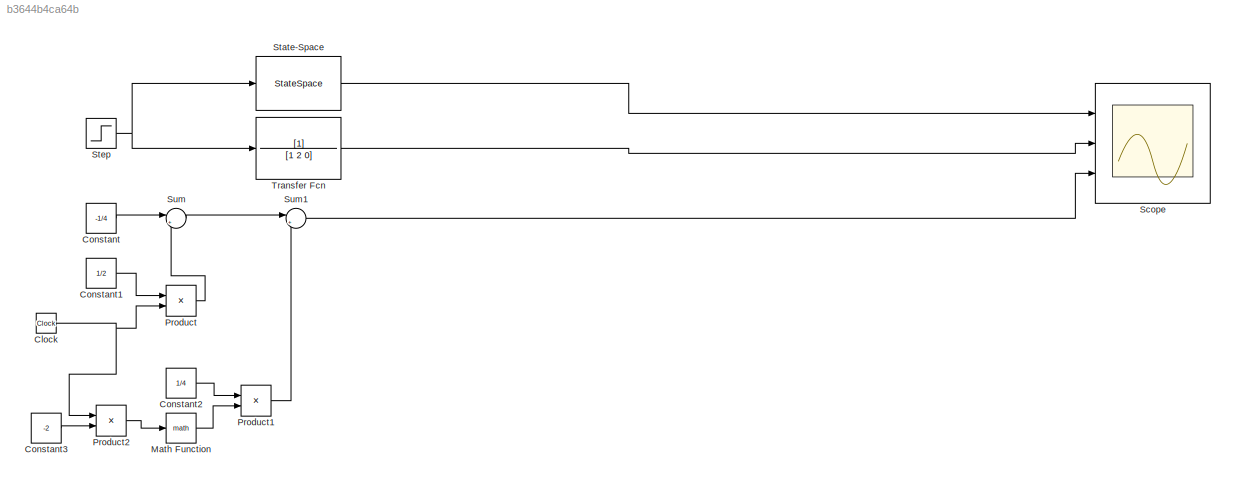
MODEL slx_b3644b4ca64b
KIND model
CONFIG AbsTol = auto
CONFIG EnableMultiTasking = off
CONFIG FixedStep = auto
CONFIG MaxStep = auto
CONFIG MinStep = auto
CONFIG RelTol = 1e-3
CONFIG SampleTimeConstraint = Unconstrained
CONFIG Solver = VariableStepAuto
CONFIG SolverName = VariableStepAuto
CONFIG StartTime = 0.0
CONFIG StopTime = 10.0
BLOCK [Clock] Clock
BLOCK [Constant] Constant
  Value = -1/4
BLOCK [Constant] Constant1
  Value = 1/2
BLOCK [Constant] Constant2
  Value = 1/4
BLOCK [Constant] Constant3
  Value = -2
BLOCK [Math] Math Function
  Ports = [1, 1]
BLOCK [Product] Product
  InputSameDT = off
  OutDataTypeStr = Inherit: Inherit via internal rule
  Ports = [2, 1]
  RndMeth = Floor
  SaturateOnIntegerOverflow = off
BLOCK [Product] Product1
  InputSameDT = off
  OutDataTypeStr = Inherit: Inherit via internal rule
  Ports = [2, 1]
  RndMeth = Floor
  SaturateOnIntegerOverflow = off
BLOCK [Product] Product2
  InputSameDT = off
  OutDataTypeStr = Inherit: Inherit via internal rule
  Ports = [2, 1]
  RndMeth = Floor
  SaturateOnIntegerOverflow = off
BLOCK [Scope] Scope
  Floating = off
  NumInputPorts = 3
  Ports = [3]
  ScopeSpecificationString = Simulink.scopes.TimeScopeBlockCfg('CurrentConfiguration', extmgr.ConfigurationSet(extmgr.Configuration('Core','General UI',true),extmgr.Configuration('Core','Source UI',true),extmgr.Configuration('Sources','WiredSimulink',true),extmgr.Configuration('Visuals','Time Domain',true,'SerializedDisplays',{struct('MinYLimReal','-0.59375','MaxYLimReal','5.34375','YLabelReal','','MinYLimMag','0.00000','MaxY...<+1386ch>
BLOCK [StateSpace] State-Space
  A = [-4,-4,0;1,0,0;0,1,0]
  B = [1;0;0]
  C = [0,1,2]
  D = 0
  InitialCondition = 0
  Ports = [1, 1]
BLOCK [Step] Step
  SampleTime = 0
  Time = 0
BLOCK [Sum] Sum
  IconShape = round
  InputSameDT = off
  Inputs = |++
  OutDataTypeStr = Inherit: Inherit via internal rule
  Ports = [2, 1]
  SaturateOnIntegerOverflow = off
BLOCK [Sum] Sum1
  IconShape = round
  InputSameDT = off
  Inputs = |++
  OutDataTypeStr = Inherit: Inherit via internal rule
  Ports = [2, 1]
  SaturateOnIntegerOverflow = off
BLOCK [TransferFcn] Transfer Fcn
  Denominator = [1 2 0]
NET Clock:1 -> Product2:1, Product:2
LINE Constant1:1 -> Product:1
LINE Constant2:1 -> Product1:1
LINE Constant3:1 -> Product2:2
LINE Constant:1 -> Sum:1
LINE Math Function:1 -> Product1:2
LINE Product1:1 -> Sum1:2
LINE Product2:1 -> Math Function:1
LINE Product:1 -> Sum:2
LINE State-Space:1 -> Scope:1
NET Step:1 -> State-Space:1, Transfer Fcn:1
LINE Sum1:1 -> Scope:3
LINE Sum:1 -> Sum1:1
LINE Transfer Fcn:1 -> Scope:2
note: NET lines group one-source signal fan-out (src -> all destinations, sorted); 1:1 wires keep LINE
